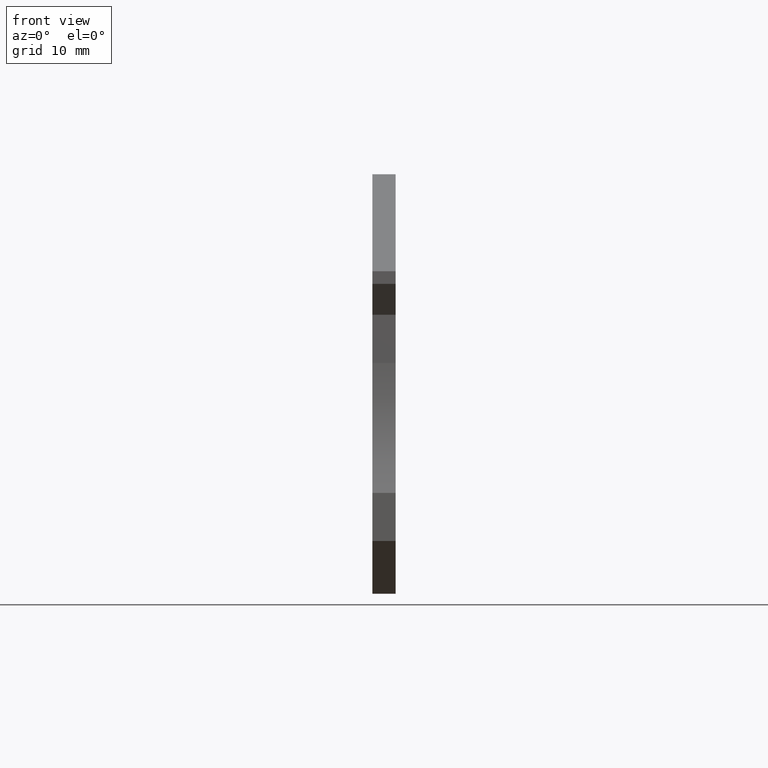
[diagram: clean part render]
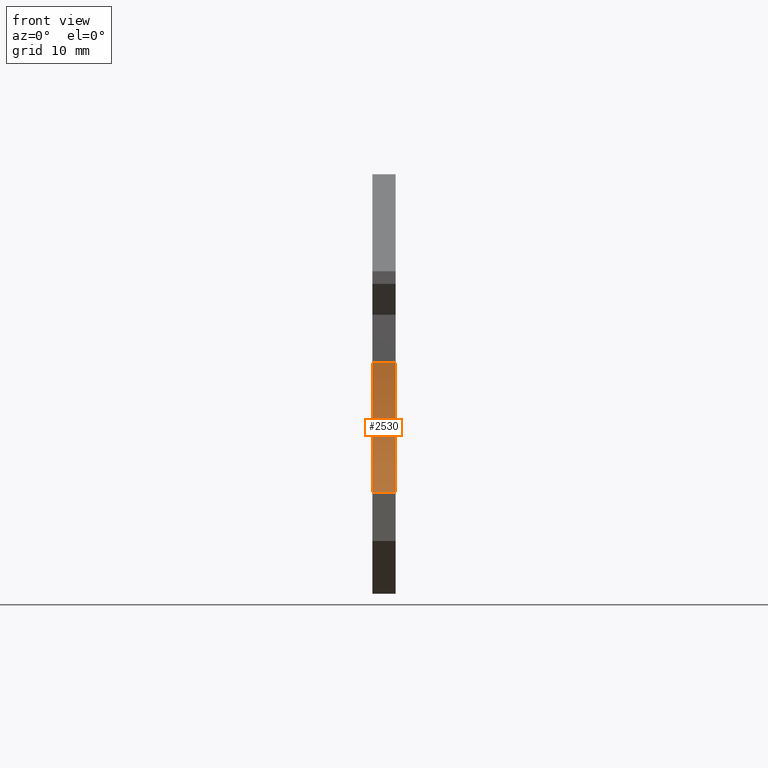
[diagram: same view with one face highlighted and labeled with its STEP entity id]
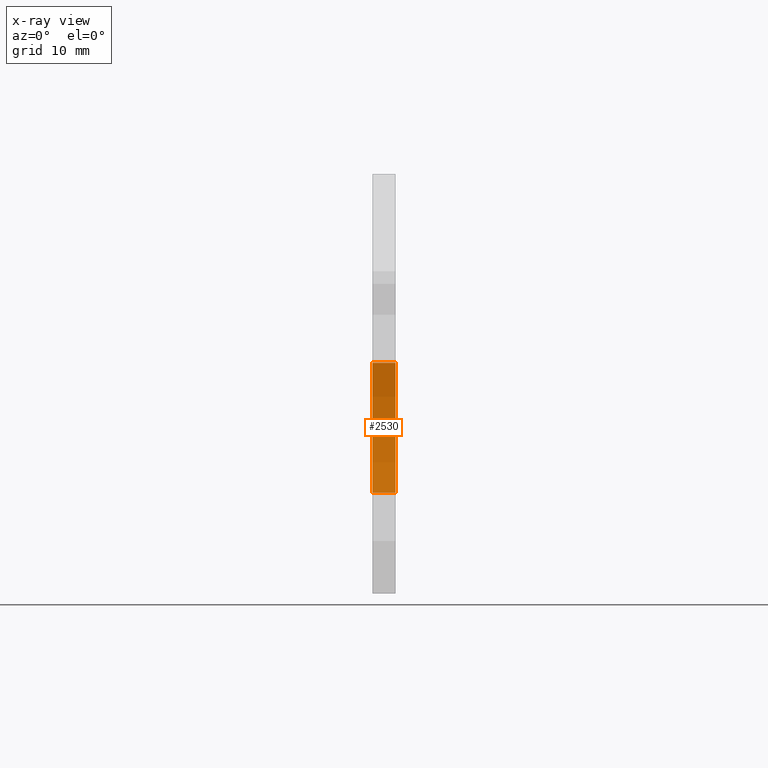
[diagram: x-ray of the same camera — body ghosted, the highlighted face saturated]
A machine part, front view. The second image highlights one B-rep face of the part: STEP entity #2530.
The next image is the same camera in x-ray: the body ghosted, the highlighted face saturated — about 0% of this face is hidden behind the body in this view.
In plain terms, the highlighted cylindrical surface (partial cylindrical patch) has radius 25 mm, axis along (1, -0, 0).
Its self-contained STEP definition (entity closure, byte-faithful):
#1170=CARTESIAN_POINT('',(9.17968082605067,-36.3500000000066,
-1.73194791841524E-13));
#1180=VERTEX_POINT('',#1170);
#1210=CARTESIAN_POINT('',(-15.8203191739493,-36.3500000000066,
-1.35891298214119E-13));
#1220=DIRECTION('',(0.,0.,1.));
#1230=DIRECTION('',(1.,0.,0.));
#1240=AXIS2_PLACEMENT_3D('',#1210,#1220,#1230);
#1250=CIRCLE('',#1240,25.);
#1260=CARTESIAN_POINT('',(5.92968082605108,-48.676293035627,
-3.03550800258254E-13));
#1270=VERTEX_POINT('',#1260);
#1280=EDGE_CURVE('',#1270,#1180,#1250,.T.);
#2220=CARTESIAN_POINT('',(-15.8203191739493,-36.3500000000066,
2.19999999999998));
#2230=DIRECTION('',(0.,0.,1.));
#2240=DIRECTION('',(1.,0.,0.));
#2250=AXIS2_PLACEMENT_3D('',#2220,#2230,#2240);
#2260=CYLINDRICAL_SURFACE('',#2250,25.);
#2270=ORIENTED_EDGE('',*,*,#1280,.F.);
#2280=CARTESIAN_POINT('',(9.17968082605067,-36.3500000000066,
1.09999999999998));
#2290=DIRECTION('',(0.,0.,-1.));
#2300=VECTOR('',#2290,1.);
#2310=LINE('',#2280,#2300);
#2320=CARTESIAN_POINT('',(9.17968082605067,-36.3500000000066,
2.19999999999998));
#2330=VERTEX_POINT('',#2320);
#2340=EDGE_CURVE('',#2330,#1180,#2310,.T.);
#2350=ORIENTED_EDGE('',*,*,#2340,.T.);
#2360=CARTESIAN_POINT('',(-15.8203191739493,-36.3500000000066,
2.19999999999998));
#2370=DIRECTION('',(0.,0.,1.));
#2380=DIRECTION('',(1.,0.,0.));
#2390=AXIS2_PLACEMENT_3D('',#2360,#2370,#2380);
#2400=CIRCLE('',#2390,25.);
#2410=CARTESIAN_POINT('',(5.92968082605108,-48.676293035627,
2.19999999999998));
#2420=VERTEX_POINT('',#2410);
#2430=EDGE_CURVE('',#2420,#2330,#2400,.T.);
#2440=ORIENTED_EDGE('',*,*,#2430,.T.);
#2450=CARTESIAN_POINT('',(5.92968082605108,-48.676293035627,
2.19999999999998));
#2460=DIRECTION('',(0.,0.,1.));
#2470=VECTOR('',#2460,1.);
#2480=LINE('',#2450,#2470);
#2490=EDGE_CURVE('',#1270,#2420,#2480,.T.);
#2500=ORIENTED_EDGE('',*,*,#2490,.T.);
#2510=EDGE_LOOP('',(#2500,#2440,#2350,#2270));
#2520=FACE_OUTER_BOUND('',#2510,.T.);
#2530=ADVANCED_FACE('',(#2520),#2260,.F.);